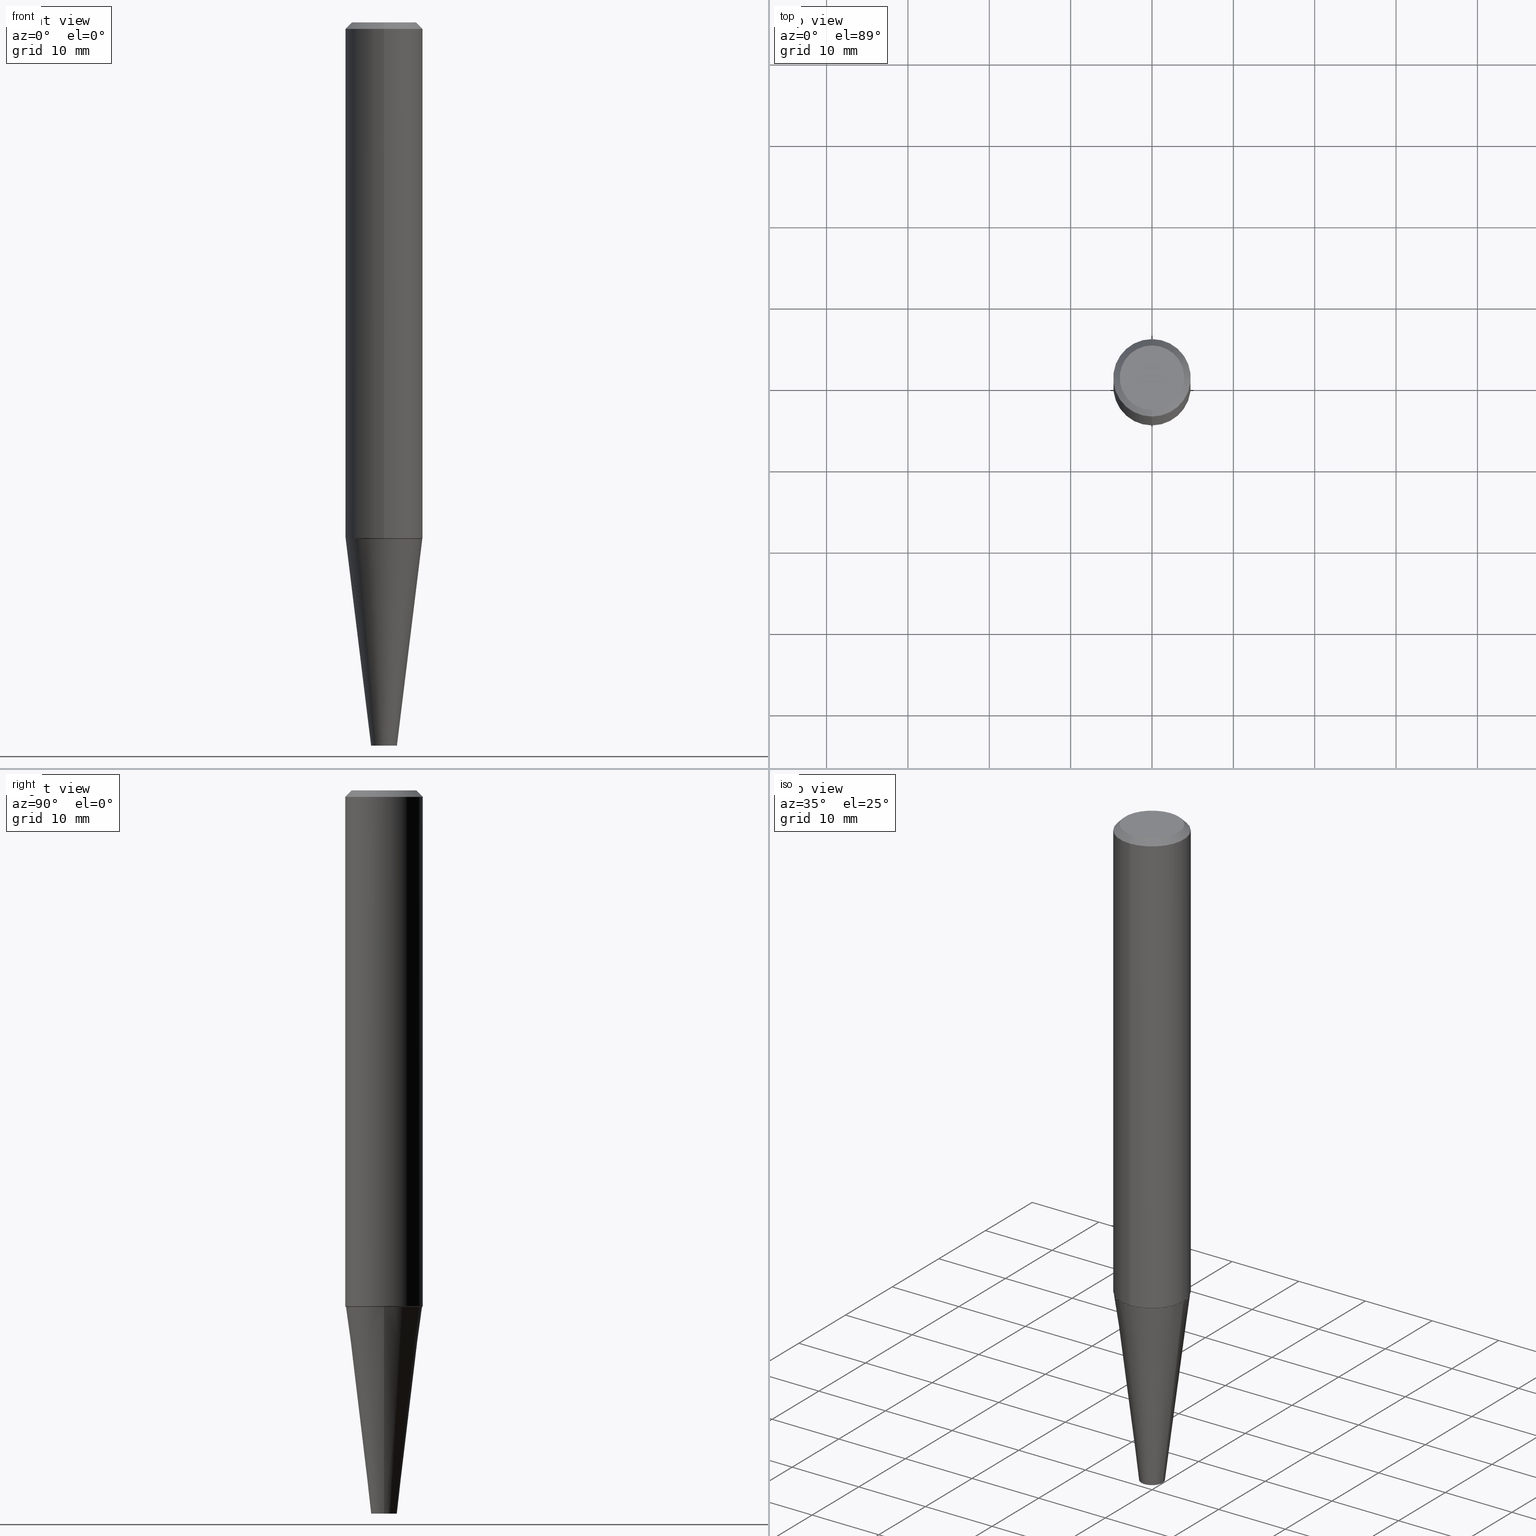
[diagram: canonical four-view strip — front | top / right | iso, engineering-drawing reading convention]
A machine part, canonical four-view strip (front | top / right | iso — engineering-drawing reading convention). The complete STEP part file that produces these views, byte-faithful:
ISO-10303-21;
HEADER;
FILE_DESCRIPTION (( 'STEP AP203' ),
    '1' );
FILE_NAME ('32382.STEP',
    '2024-03-04T15:09:43',
    ( '' ),
    ( '' ),
    'SwSTEP 2.0',
    'SolidWorks 2023',
    '' );
FILE_SCHEMA (( 'CONFIG_CONTROL_DESIGN' ));
ENDSEC;

DATA;
#1 = DIRECTION ( 'NONE',  ( 1.000000000000000000, -6.982962677686269866E-15, 0.000000000000000000 ) ) ;
#2 = PERSON ( 'UNSPECIFIED', 'UNSPECIFIED', 'UNSPECIFIED', ('UNSPECIFIED'), ('UNSPECIFIED'), ('UNSPECIFIED') ) ;
#3 = CALENDAR_DATE ( 2024, 4, 3 ) ;
#4 = DIRECTION ( 'NONE',  ( -2.600759612072551772E-29, 3.269096066208594988E-15, 1.000000000000000000 ) ) ;
#5 = ADVANCED_FACE ( 'NONE', ( #218 ), #158, .T. ) ;
#6 = CARTESIAN_POINT ( 'NONE',  ( -3.397982428467410497E-30, -4.866104238714464729E-16, 1.274557757746687313E-16 ) ) ;
#7 = PERSON_AND_ORGANIZATION ( #2, #90 ) ;
#8 = CIRCLE ( 'NONE', #309, 0.1857214302577610554 ) ;
#9 = AXIS2_PLACEMENT_3D ( 'NONE', #39, #200, #346 ) ;
#10 = UNCERTAINTY_MEASURE_WITH_UNIT (LENGTH_MEASURE( 1.000000000000000082E-05 ), #215, 'distance_accuracy_value', 'NONE');
#11 = DATE_AND_TIME ( #137, #287 ) ;
#12 = ORIENTED_EDGE ( 'NONE', *, *, #106, .T. ) ;
#13 = ORIENTED_EDGE ( 'NONE', *, *, #150, .T. ) ;
#14 = EDGE_CURVE ( 'NONE', #23, #395, #8, .T. ) ;
#15 =( GEOMETRIC_REPRESENTATION_CONTEXT ( 3 ) GLOBAL_UNCERTAINTY_ASSIGNED_CONTEXT ( ( #10 ) ) GLOBAL_UNIT_ASSIGNED_CONTEXT ( ( #215, #407, #379 ) ) REPRESENTATION_CONTEXT ( 'NONE', 'WORKASPACE' ) );
#16 = ORIENTED_EDGE ( 'NONE', *, *, #198, .T. ) ;
#17 = ADVANCED_FACE ( 'NONE', ( #52 ), #113, .T. ) ;
#18 = ORIENTED_EDGE ( 'NONE', *, *, #129, .F. ) ;
#19 = VERTEX_POINT ( 'NONE', #153 ) ;
#20 = CIRCLE ( 'NONE', #53, 0.1875000000000004718 ) ;
#21 = DIRECTION ( 'NONE',  ( -2.600759612072551772E-29, 3.269096066208594988E-15, 1.000000000000000000 ) ) ;
#22 = DIRECTION ( 'NONE',  ( -2.951127548644238740E-15, -0.4226182617407344688, 0.9063077870366335054 ) ) ;
#23 = VERTEX_POINT ( 'NONE', #121 ) ;
#24 = ADVANCED_FACE ( 'NONE', ( #312 ), #254, .F. ) ;
#25 = CC_DESIGN_PERSON_AND_ORGANIZATION_ASSIGNMENT ( #7, #327, ( #187 ) ) ;
#26 = CARTESIAN_POINT ( 'NONE',  ( -1.296885815936396651E-15, -0.1857214302577696874, -2.499063130645136077 ) ) ;
#27 = CARTESIAN_POINT ( 'NONE',  ( 6.159664215354721333E-29, -8.656287873470398389E-15, -2.499063130645136521 ) ) ;
#28 = VECTOR ( 'NONE', #62, 39.37007874015748143 ) ;
#29 = CARTESIAN_POINT ( 'NONE',  ( 0.1852845609028975771, -1.002253852064428481E-14, -2.500000000000000000 ) ) ;
#30 = CARTESIAN_POINT ( 'NONE',  ( 6.159664215354721333E-29, -8.656287873470398389E-15, -2.499063130645136521 ) ) ;
#31 = EDGE_CURVE ( 'NONE', #395, #23, #212, .T. ) ;
#32 = CARTESIAN_POINT ( 'NONE',  ( 1.200196710227326894E-15, 0.1562499999999999167, -3.833404845704254927E-16 ) ) ;
#33 = DIRECTION ( 'NONE',  ( -2.600759612072551772E-29, 3.269096066208594988E-15, 1.000000000000000000 ) ) ;
#34 = APPROVAL_ROLE ( '' ) ;
#35 = ADVANCED_BREP_SHAPE_REPRESENTATION ( '32382', ( #358, #359, #321 ), #15 ) ;
#36 = DIRECTION ( 'NONE',  ( 4.937700262164537787E-15, 0.7071067811865436870, -0.7071067811865513475 ) ) ;
#37 = VECTOR ( 'NONE', #22, 39.37007874015748143 ) ;
#38 = COORDINATED_UNIVERSAL_TIME_OFFSET ( 5, 0, .BEHIND. ) ;
#39 = CARTESIAN_POINT ( 'NONE',  ( -3.397982428467410497E-30, -4.866104238714464729E-16, 1.274557757746687313E-16 ) ) ;
#40 = DIRECTION ( 'NONE',  ( 1.000000000000000000, -6.982962677686262766E-15, 0.000000000000000000 ) ) ;
#41 = COORDINATED_UNIVERSAL_TIME_OFFSET ( 5, 0, .BEHIND. ) ;
#42 = APPROVAL_ROLE ( '' ) ;
#43 = CIRCLE ( 'NONE', #227, 0.1874999999999999445 ) ;
#44 = AXIS2_PLACEMENT_3D ( 'NONE', #105, #229, #40 ) ;
#45 = ORIENTED_EDGE ( 'NONE', *, *, #184, .F. ) ;
#46 = ORIENTED_EDGE ( 'NONE', *, *, #351, .F. ) ;
#47 = ORIENTED_EDGE ( 'NONE', *, *, #298, .T. ) ;
#48 = AXIS2_PLACEMENT_3D ( 'NONE', #197, #318, #266 ) ;
#49 = ORIENTED_EDGE ( 'NONE', *, *, #63, .T. ) ;
#50 = ADVANCED_FACE ( 'NONE', ( #194 ), #151, .T. ) ;
#51 = CARTESIAN_POINT ( 'NONE',  ( 6.162100787334639082E-29, -8.659350589392934928E-15, -2.500000000000000000 ) ) ;
#52 = FACE_OUTER_BOUND ( 'NONE', #80, .T. ) ;
#53 = AXIS2_PLACEMENT_3D ( 'NONE', #160, #410, #87 ) ;
#54 = CARTESIAN_POINT ( 'NONE',  ( -1.296885815936397045E-15, -0.1857214302577697984, -2.499063130645136077 ) ) ;
#55 = EDGE_CURVE ( 'NONE', #140, #23, #217, .T. ) ;
#56 = LINE ( 'NONE', #375, #226 ) ;
#57 = EDGE_CURVE ( 'NONE', #247, #274, #381, .T. ) ;
#58 = LINE ( 'NONE', #92, #159 ) ;
#59 = CC_DESIGN_PERSON_AND_ORGANIZATION_ASSIGNMENT ( #349, #384, ( #136 ) ) ;
#60 = LINE ( 'NONE', #316, #270 ) ;
#61 = FACE_OUTER_BOUND ( 'NONE', #82, .T. ) ;
#62 = DIRECTION ( 'NONE',  ( 5.024295867788152320E-15, 0.7071067811865626718, 0.7071067811865323627 ) ) ;
#63 = EDGE_CURVE ( 'NONE', #371, #19, #60, .T. ) ;
#64 = VECTOR ( 'NONE', #296, 39.37007874015748854 ) ;
#65 = PLANE ( 'NONE',  #149 ) ;
#66 = DIRECTION ( 'NONE',  ( 1.000000000000000000, -6.982962677686262766E-15, 0.000000000000000000 ) ) ;
#67 = LINE ( 'NONE', #26, #37 ) ;
#68 = FACE_OUTER_BOUND ( 'NONE', #399, .T. ) ;
#69 = PERSON_AND_ORGANIZATION_ROLE ( 'design_owner' ) ;
#70 = DIRECTION ( 'NONE',  ( -1.000000000000000000, 6.982962677686265922E-15, -4.876176775795935793E-29 ) ) ;
#71 = CIRCLE ( 'NONE', #142, 0.1847845609028974934 ) ;
#72 = LOCAL_TIME ( 10, 9, 43.00000000000000000, #73 ) ;
#73 = COORDINATED_UNIVERSAL_TIME_OFFSET ( 5, 0, .BEHIND. ) ;
#74 = CARTESIAN_POINT ( 'NONE',  ( 6.162100787334639082E-29, -8.659350589392934928E-15, -2.500000000000000000 ) ) ;
#75 = PRODUCT_DEFINITION_SHAPE ( 'NONE', 'NONE',  #370 ) ;
#76 = PLANE ( 'NONE',  #372 ) ;
#77 = PERSON_AND_ORGANIZATION ( #2, #90 ) ;
#78 = EDGE_LOOP ( 'NONE', ( #364, #368, #307, #110 ) ) ;
#79 = ORIENTED_EDGE ( 'NONE', *, *, #351, .T. ) ;
#80 = EDGE_LOOP ( 'NONE', ( #111, #162, #209, #330 ) ) ;
#81 = LOCAL_TIME ( 10, 9, 43.00000000000000000, #41 ) ;
#82 = EDGE_LOOP ( 'NONE', ( #115, #45 ) ) ;
#83 = ORIENTED_EDGE ( 'NONE', *, *, #256, .F. ) ;
#84 = EDGE_CURVE ( 'NONE', #275, #395, #56, .T. ) ;
#85 = CARTESIAN_POINT ( 'NONE',  ( -1.309305502066179544E-15, -0.1875000000000006661, 6.320793669469502514E-16 ) ) ;
#86 = ORIENTED_EDGE ( 'NONE', *, *, #220, .T. ) ;
#87 = DIRECTION ( 'NONE',  ( -6.982962677686265922E-15, -1.000000000000000000, 3.278217592397107974E-15 ) ) ;
#88 = CONICAL_SURFACE ( 'NONE', #181, 0.1847845609028974934, 0.7853981633974664867 ) ;
#89 = DIRECTION ( 'NONE',  ( -6.982962677686265922E-15, -1.000000000000000000, 2.941876971195792184E-15 ) ) ;
#90 = ORGANIZATION ( 'UNSPECIFIED', 'UNSPECIFIED', '' ) ;
#91 = ORIENTED_EDGE ( 'NONE', *, *, #286, .T. ) ;
#92 = CARTESIAN_POINT ( 'NONE',  ( 0.06250000000000000000, -1.265661985330639943E-14, -3.500000000000000000 ) ) ;
#93 = ORIENTED_EDGE ( 'NONE', *, *, #129, .T. ) ;
#94 = DIRECTION ( 'NONE',  ( -6.982962677686266711E-15, -1.000000000000000000, 2.913971193241881555E-15 ) ) ;
#95 = AXIS2_PLACEMENT_3D ( 'NONE', #414, #392, #66 ) ;
#96 = DIRECTION ( 'NONE',  ( -2.600759612072551772E-29, 3.269096066208594988E-15, 1.000000000000000000 ) ) ;
#97 = COORDINATED_UNIVERSAL_TIME_OFFSET ( 5, 0, .BEHIND. ) ;
#98 = EDGE_CURVE ( 'NONE', #246, #112, #43, .T. ) ;
#99 = CARTESIAN_POINT ( 'NONE',  ( 1.319630131446343223E-15, 0.1857214302577524234, -2.499063130645136965 ) ) ;
#100 = MECHANICAL_CONTEXT ( 'NONE', #400, 'mechanical' ) ;
#101 = ADVANCED_FACE ( 'NONE', ( #189 ), #249, .T. ) ;
#102 = FACE_OUTER_BOUND ( 'NONE', #397, .T. ) ;
#103 = CLOSED_SHELL ( 'NONE', ( #138, #268, #5, #145 ) ) ;
#104 = CALENDAR_DATE ( 2024, 4, 3 ) ;
#105 = CARTESIAN_POINT ( 'NONE',  ( 8.559140821647976968E-29, -1.222018468595100934E-14, -3.500000000000000000 ) ) ;
#106 = EDGE_CURVE ( 'NONE', #246, #19, #214, .T. ) ;
#107 = APPROVAL_ROLE ( '' ) ;
#108 = ORIENTED_EDGE ( 'NONE', *, *, #14, .F. ) ;
#109 = APPROVAL_PERSON_ORGANIZATION ( #242, #118, #107 ) ;
#110 = ORIENTED_EDGE ( 'NONE', *, *, #84, .F. ) ;
#111 = ORIENTED_EDGE ( 'NONE', *, *, #170, .F. ) ;
#112 = VERTEX_POINT ( 'NONE', #126 ) ;
#113 = CONICAL_SURFACE ( 'NONE', #127, 0.1857214302577610554, 0.4363323129986242943 ) ;
#114 = AXIS2_PLACEMENT_3D ( 'NONE', #292, #166, #1 ) ;
#115 = ORIENTED_EDGE ( 'NONE', *, *, #156, .F. ) ;
#116 = ORIENTED_EDGE ( 'NONE', *, *, #203, .T. ) ;
#117 =( LENGTH_UNIT ( ) NAMED_UNIT ( * ) SI_UNIT ( $, .METRE. ) );
#118 = APPROVAL ( #416, 'UNSPECIFIED' ) ;
#119 = ADVANCED_FACE ( 'NONE', ( #263 ), #383, .F. ) ;
#120 = APPROVAL_PERSON_ORGANIZATION ( #233, #302, #34 ) ;
#121 = CARTESIAN_POINT ( 'NONE',  ( 1.319630131446342829E-15, 0.1857214302577523124, -2.499063130645136965 ) ) ;
#122 = ORIENTED_EDGE ( 'NONE', *, *, #409, .T. ) ;
#123 = CARTESIAN_POINT ( 'NONE',  ( 6.159664215354721333E-29, -8.656287873470398389E-15, -2.499063130645136521 ) ) ;
#124 = DIRECTION ( 'NONE',  ( -2.600759612072551772E-29, 3.269096066208594988E-15, 1.000000000000000000 ) ) ;
#125 = CARTESIAN_POINT ( 'NONE',  ( 1.309305502066175600E-15, 0.1874999999999998890, -0.03125000000000069389 ) ) ;
#126 = CARTESIAN_POINT ( 'NONE',  ( 1.332267629550217234E-15, 0.1874999999999913125, -2.495248975524297474 ) ) ;
#127 = AXIS2_PLACEMENT_3D ( 'NONE', #30, #188, #289 ) ;
#128 = AXIS2_PLACEMENT_3D ( 'NONE', #6, #96, #135 ) ;
#129 = EDGE_CURVE ( 'NONE', #371, #335, #175, .T. ) ;
#130 = APPROVAL_DATE_TIME ( #173, #118 ) ;
#131 = CARTESIAN_POINT ( 'NONE',  ( 6.162100787334639082E-29, -8.659350589392934928E-15, -2.500000000000000000 ) ) ;
#132 = APPROVAL_DATE_TIME ( #177, #222 ) ;
#133 = EDGE_CURVE ( 'NONE', #275, #140, #322, .T. ) ;
#134 = FACE_OUTER_BOUND ( 'NONE', #185, .T. ) ;
#135 = DIRECTION ( 'NONE',  ( -6.982962677686265922E-15, -1.000000000000000000, 3.269096066208595382E-15 ) ) ;
#136 = PRODUCT_DEFINITION_FORMATION_WITH_SPECIFIED_SOURCE ( 'ANY', '', #365, .NOT_KNOWN. ) ;
#137 = CALENDAR_DATE ( 2024, 4, 3 ) ;
#138 = ADVANCED_FACE ( 'NONE', ( #204 ), #193, .T. ) ;
#139 = DATE_TIME_ROLE ( 'classification_date' ) ;
#140 = VERTEX_POINT ( 'NONE', #348 ) ;
#141 = EDGE_LOOP ( 'NONE', ( #147, #378, #180, #79 ) ) ;
#142 = AXIS2_PLACEMENT_3D ( 'NONE', #131, #265, #386 ) ;
#143 = ORIENTED_EDGE ( 'NONE', *, *, #133, .F. ) ;
#144 = ADVANCED_FACE ( 'NONE', ( #68 ), #239, .T. ) ;
#145 = ADVANCED_FACE ( 'NONE', ( #134 ), #76, .F. ) ;
#146 = EDGE_LOOP ( 'NONE', ( #362, #91, #213, #250 ) ) ;
#147 = ORIENTED_EDGE ( 'NONE', *, *, #63, .F. ) ;
#148 = AXIS2_PLACEMENT_3D ( 'NONE', #224, #343, #377 ) ;
#149 = AXIS2_PLACEMENT_3D ( 'NONE', #192, #347, #259 ) ;
#150 = EDGE_CURVE ( 'NONE', #335, #371, #360, .T. ) ;
#151 = CYLINDRICAL_SURFACE ( 'NONE', #148, 0.1875000000000001943 ) ;
#152 = FACE_OUTER_BOUND ( 'NONE', #179, .T. ) ;
#153 = CARTESIAN_POINT ( 'NONE',  ( -1.286343374582167887E-15, -0.1875000000000010270, -0.03124999999999946571 ) ) ;
#154 = DIRECTION ( 'NONE',  ( 6.982962677686265922E-15, 1.000000000000000000, -3.278217592397107974E-15 ) ) ;
#155 = ORIENTED_EDGE ( 'NONE', *, *, #98, .F. ) ;
#156 = EDGE_CURVE ( 'NONE', #398, #260, #314, .T. ) ;
#157 = CARTESIAN_POINT ( 'NONE',  ( 0.06250000000000000000, -1.265661985330639943E-14, -3.500000000000000000 ) ) ;
#158 = CONICAL_SURFACE ( 'NONE', #401, 0.06250000000000000000, 0.1221730476395961884 ) ;
#159 = VECTOR ( 'NONE', #285, 39.37007874015748854 ) ;
#160 = CARTESIAN_POINT ( 'NONE',  ( -2.585245049694732813E-30, -5.887696759404657318E-16, -0.03125000000000008327 ) ) ;
#161 = CARTESIAN_POINT ( 'NONE',  ( 6.159664215354721333E-29, -8.656287873470398389E-15, -2.499063130645136521 ) ) ;
#162 = ORIENTED_EDGE ( 'NONE', *, *, #14, .T. ) ;
#163 = CARTESIAN_POINT ( 'NONE',  ( -1.290343692197516517E-15, -0.1847845609029061809, -2.499999999999999556 ) ) ;
#164 = DIRECTION ( 'NONE',  ( -6.982962677686265922E-15, -1.000000000000000000, 3.269096066208594988E-15 ) ) ;
#165 = CALENDAR_DATE ( 2024, 4, 3 ) ;
#166 = DIRECTION ( 'NONE',  ( -2.445468806185136597E-29, 3.491481338843145583E-15, 1.000000000000000000 ) ) ;
#167 = APPROVAL_PERSON_ORGANIZATION ( #295, #222, #42 ) ;
#168 = COORDINATED_UNIVERSAL_TIME_OFFSET ( 5, 0, .BEHIND. ) ;
#169 = LINE ( 'NONE', #388, #300 ) ;
#170 = EDGE_CURVE ( 'NONE', #23, #112, #319, .T. ) ;
#171 = DIMENSIONAL_EXPONENTS ( 1.000000000000000000, 0.000000000000000000, 0.000000000000000000, 0.000000000000000000, 0.000000000000000000, 0.000000000000000000, 0.000000000000000000 ) ;
#172 = DIRECTION ( 'NONE',  ( 2.438088387897960049E-29, -3.491481338843145188E-15, -1.000000000000000000 ) ) ;
#173 = DATE_AND_TIME ( #104, #176 ) ;
#174 = AXIS2_PLACEMENT_3D ( 'NONE', #27, #288, #89 ) ;
#175 = CIRCLE ( 'NONE', #128, 0.1562500000000003886 ) ;
#176 = LOCAL_TIME ( 10, 9, 43.00000000000000000, #38 ) ;
#177 = DATE_AND_TIME ( #3, #72 ) ;
#178 = DIRECTION ( 'NONE',  ( -2.600759612072551772E-29, 3.269096066208594988E-15, 1.000000000000000000 ) ) ;
#179 = EDGE_LOOP ( 'NONE', ( #277, #328, #155, #83 ) ) ;
#180 = ORIENTED_EDGE ( 'NONE', *, *, #196, .T. ) ;
#181 = AXIS2_PLACEMENT_3D ( 'NONE', #235, #4, #325 ) ;
#182 = DIRECTION ( 'NONE',  ( -6.982962677686265922E-15, -1.000000000000000000, 2.941876971195792184E-15 ) ) ;
#183 = ORIENTED_EDGE ( 'NONE', *, *, #286, .F. ) ;
#184 = EDGE_CURVE ( 'NONE', #260, #398, #396, .T. ) ;
#185 = EDGE_LOOP ( 'NONE', ( #16, #245 ) ) ;
#186 = AXIS2_PLACEMENT_3D ( 'NONE', #411, #311, #225 ) ;
#187 = SECURITY_CLASSIFICATION ( '', '', #206 ) ;
#188 = DIRECTION ( 'NONE',  ( -2.600759612072551772E-29, 3.269096066208594988E-15, 1.000000000000000000 ) ) ;
#189 = FACE_OUTER_BOUND ( 'NONE', #78, .T. ) ;
#190 = FACE_OUTER_BOUND ( 'NONE', #221, .T. ) ;
#191 = ADVANCED_FACE ( 'NONE', ( #102 ), #88, .T. ) ;
#192 = CARTESIAN_POINT ( 'NONE',  ( 4.364351673554772115E-16, 0.06249999999998778061, -3.500000000000000000 ) ) ;
#193 = CONICAL_SURFACE ( 'NONE', #44, 0.06250000000000000000, 0.1221730476395961884 ) ;
#194 = FACE_OUTER_BOUND ( 'NONE', #301, .T. ) ;
#195 = CARTESIAN_POINT ( 'NONE',  ( -2.585245049694732813E-30, -5.887696759404657318E-16, -0.03125000000000008327 ) ) ;
#196 = EDGE_CURVE ( 'NONE', #335, #361, #169, .T. ) ;
#197 = CARTESIAN_POINT ( 'NONE',  ( 8.559140821647976968E-29, -1.222018468595100934E-14, -3.500000000000000000 ) ) ;
#198 = EDGE_CURVE ( 'NONE', #274, #247, #305, .T. ) ;
#199 = DIRECTION ( 'NONE',  ( 1.000000000000000000, -6.982962677686262766E-15, 0.000000000000000000 ) ) ;
#200 = DIRECTION ( 'NONE',  ( -2.600759612072551772E-29, 3.269096066208594988E-15, 1.000000000000000000 ) ) ;
#201 = PERSON_AND_ORGANIZATION_ROLE ( 'design_supplier' ) ;
#202 = DIRECTION ( 'NONE',  ( -6.982962677686265922E-15, -1.000000000000000000, 3.269096066208594988E-15 ) ) ;
#203 = EDGE_CURVE ( 'NONE', #140, #275, #71, .T. ) ;
#204 = FACE_OUTER_BOUND ( 'NONE', #146, .T. ) ;
#205 = PERSON_AND_ORGANIZATION ( #2, #90 ) ;
#206 = SECURITY_CLASSIFICATION_LEVEL ( 'unclassified' ) ;
#207 = AXIS2_PLACEMENT_3D ( 'NONE', #369, #258, #338 ) ;
#208 = AXIS2_PLACEMENT_3D ( 'NONE', #195, #291, #154 ) ;
#209 = ORIENTED_EDGE ( 'NONE', *, *, #256, .T. ) ;
#210 = ORIENTED_EDGE ( 'NONE', *, *, #409, .F. ) ;
#211 = ORIENTED_EDGE ( 'NONE', *, *, #282, .T. ) ;
#212 = CIRCLE ( 'NONE', #174, 0.1857214302577610554 ) ;
#213 = ORIENTED_EDGE ( 'NONE', *, *, #198, .F. ) ;
#214 = LINE ( 'NONE', #85, #237 ) ;
#215 =( CONVERSION_BASED_UNIT ( 'INCH', #253 ) LENGTH_UNIT ( ) NAMED_UNIT ( #171 ) );
#216 = CIRCLE ( 'NONE', #353, 0.1874999999999999445 ) ;
#217 = LINE ( 'NONE', #408, #28 ) ;
#218 = FACE_OUTER_BOUND ( 'NONE', #278, .T. ) ;
#219 = DIRECTION ( 'NONE',  ( -2.600759612072551772E-29, 3.269096066208594988E-15, 1.000000000000000000 ) ) ;
#220 = EDGE_CURVE ( 'NONE', #112, #246, #216, .T. ) ;
#221 = EDGE_LOOP ( 'NONE', ( #18, #49, #211, #255 ) ) ;
#222 = APPROVAL ( #272, 'UNSPECIFIED' ) ;
#223 = LINE ( 'NONE', #283, #310 ) ;
#224 = CARTESIAN_POINT ( 'NONE',  ( -3.397982428467408395E-30, -4.866104238714468673E-16, 1.912385453283800096E-17 ) ) ;
#225 = DIRECTION ( 'NONE',  ( -6.982962677686265922E-15, -1.000000000000000000, 3.278217592397107974E-15 ) ) ;
#226 = VECTOR ( 'NONE', #412, 39.37007874015748143 ) ;
#227 = AXIS2_PLACEMENT_3D ( 'NONE', #334, #124, #94 ) ;
#228 = CARTESIAN_POINT ( 'NONE',  ( 1.091087918388478385E-15, 0.1562499999999999167, -4.375064451913409565E-16 ) ) ;
#229 = DIRECTION ( 'NONE',  ( -2.445468806185136597E-29, 3.491481338843145583E-15, 1.000000000000000000 ) ) ;
#230 = CC_DESIGN_DATE_AND_TIME_ASSIGNMENT ( #326, #320, ( #370 ) ) ;
#231 = DATE_AND_TIME ( #352, #391 ) ;
#232 = CARTESIAN_POINT ( 'NONE',  ( 6.149744514762260827E-29, -8.643819033968951977E-15, -2.495248975524296586 ) ) ;
#233 = PERSON_AND_ORGANIZATION ( #2, #90 ) ;
#234 = DIRECTION ( 'NONE',  ( -2.445468806185136597E-29, 3.491481338843145583E-15, 1.000000000000000000 ) ) ;
#235 = CARTESIAN_POINT ( 'NONE',  ( 6.162100787334639082E-29, -8.659350589392934928E-15, -2.500000000000000000 ) ) ;
#236 = CLOSED_SHELL ( 'NONE', ( #355, #144, #332, #101, #191, #119, #24, #252, #50, #17 ) ) ;
#237 = VECTOR ( 'NONE', #405, 39.37007874015748143 ) ;
#238 = DIRECTION ( 'NONE',  ( 0.000000000000000000, 0.000000000000000000, 1.000000000000000000 ) ) ;
#239 = CYLINDRICAL_SURFACE ( 'NONE', #262, 0.1875000000000001943 ) ;
#240 = PRODUCT_RELATED_PRODUCT_CATEGORY ( 'detail', '', ( #365 ) ) ;
#241 = DIRECTION ( 'NONE',  ( 1.000000000000000000, 0.000000000000000000, 0.000000000000000000 ) ) ;
#242 = PERSON_AND_ORGANIZATION ( #2, #90 ) ;
#243 = ORIENTED_EDGE ( 'NONE', *, *, #98, .T. ) ;
#244 = CONICAL_SURFACE ( 'NONE', #208, 0.1875000000000004718, 0.7853981633974461696 ) ;
#245 = ORIENTED_EDGE ( 'NONE', *, *, #57, .T. ) ;
#246 = VERTEX_POINT ( 'NONE', #337 ) ;
#247 = VERTEX_POINT ( 'NONE', #340 ) ;
#248 = AXIS2_PLACEMENT_3D ( 'NONE', #228, #341, #281 ) ;
#249 = CONICAL_SURFACE ( 'NONE', #344, 0.1847845609028974934, 0.7853981633974664867 ) ;
#250 = ORIENTED_EDGE ( 'NONE', *, *, #298, .F. ) ;
#251 = ORIENTED_EDGE ( 'NONE', *, *, #84, .T. ) ;
#252 = ADVANCED_FACE ( 'NONE', ( #374 ), #366, .T. ) ;
#253 = LENGTH_MEASURE_WITH_UNIT ( LENGTH_MEASURE( 0.02539999999999999897 ), #117 );
#254 = PLANE ( 'NONE',  #248 ) ;
#255 = ORIENTED_EDGE ( 'NONE', *, *, #196, .F. ) ;
#256 = EDGE_CURVE ( 'NONE', #395, #246, #67, .T. ) ;
#257 = CC_DESIGN_APPROVAL ( #222, ( #187 ) ) ;
#258 = DIRECTION ( 'NONE',  ( -2.445468806185136597E-29, 3.491481338843145583E-15, 1.000000000000000000 ) ) ;
#259 = DIRECTION ( 'NONE',  ( -1.000000000000000000, 6.982962677686265922E-15, -4.876176775795935793E-29 ) ) ;
#260 = VERTEX_POINT ( 'NONE', #280 ) ;
#261 = DIRECTION ( 'NONE',  ( -0.1218693434051406344, 4.331390133080014653E-15, 0.9925461516413227603 ) ) ;
#262 = AXIS2_PLACEMENT_3D ( 'NONE', #357, #269, #202 ) ;
#263 = FACE_OUTER_BOUND ( 'NONE', #290, .T. ) ;
#264 = PERSON_AND_ORGANIZATION ( #2, #90 ) ;
#265 = DIRECTION ( 'NONE',  ( -2.600759612072551772E-29, 3.269096066208594988E-15, 1.000000000000000000 ) ) ;
#266 = DIRECTION ( 'NONE',  ( 1.000000000000000000, -6.982962677686262766E-15, 0.000000000000000000 ) ) ;
#267 = CARTESIAN_POINT ( 'NONE',  ( 0.000000000000000000, 0.000000000000000000, 0.000000000000000000 ) ) ;
#268 = ADVANCED_FACE ( 'NONE', ( #61 ), #65, .T. ) ;
#269 = DIRECTION ( 'NONE',  ( -2.600759612072551772E-29, 3.269096066208594988E-15, 1.000000000000000000 ) ) ;
#270 = VECTOR ( 'NONE', #380, 39.37007874015748143 ) ;
#271 = CC_DESIGN_APPROVAL ( #302, ( #370 ) ) ;
#272 = APPROVAL_STATUS ( 'not_yet_approved' ) ;
#273 = SHAPE_DEFINITION_REPRESENTATION ( #75, #35 ) ;
#274 = VERTEX_POINT ( 'NONE', #29 ) ;
#275 = VERTEX_POINT ( 'NONE', #163 ) ;
#276 = EDGE_LOOP ( 'NONE', ( #13, #93 ) ) ;
#277 = ORIENTED_EDGE ( 'NONE', *, *, #31, .T. ) ;
#278 = EDGE_LOOP ( 'NONE', ( #183, #303, #47, #403 ) ) ;
#279 = DIRECTION ( 'NONE',  ( -6.982962677686266711E-15, -1.000000000000000000, 2.956792472613362092E-15 ) ) ;
#280 = CARTESIAN_POINT ( 'NONE',  ( -0.06250000000000000000, -9.594136417614135936E-15, -3.500000000000000000 ) ) ;
#281 = DIRECTION ( 'NONE',  ( 6.982962677686265922E-15, 1.000000000000000000, -3.269096066208594988E-15 ) ) ;
#282 = EDGE_CURVE ( 'NONE', #19, #361, #415, .T. ) ;
#283 = CARTESIAN_POINT ( 'NONE',  ( 1.332267629550185482E-15, 0.1874999999999996947, -5.938316578812741509E-16 ) ) ;
#284 = AXIS2_PLACEMENT_3D ( 'NONE', #315, #376, #342 ) ;
#285 = DIRECTION ( 'NONE',  ( 0.1218693434051406344, 2.614447289844029388E-15, 0.9925461516413227603 ) ) ;
#286 = EDGE_CURVE ( 'NONE', #260, #247, #317, .T. ) ;
#287 = LOCAL_TIME ( 10, 9, 43.00000000000000000, #168 ) ;
#288 = DIRECTION ( 'NONE',  ( -2.600759612072551772E-29, 3.269096066208594988E-15, 1.000000000000000000 ) ) ;
#289 = DIRECTION ( 'NONE',  ( -6.982962677686265922E-15, -1.000000000000000000, 2.941876971195792184E-15 ) ) ;
#290 = EDGE_LOOP ( 'NONE', ( #143, #329 ) ) ;
#291 = DIRECTION ( 'NONE',  ( 2.600759612072551772E-29, -3.269096066208594988E-15, -1.000000000000000000 ) ) ;
#292 = CARTESIAN_POINT ( 'NONE',  ( 6.113672015462842613E-29, -8.728703347107864943E-15, -2.500000000000000000 ) ) ;
#293 = CONICAL_SURFACE ( 'NONE', #336, 0.1857214302577610554, 0.4363323129986242943 ) ;
#294 = CARTESIAN_POINT ( 'NONE',  ( 5.971225253674979444E-29, -8.932695217554266386E-15, -2.500000000000000000 ) ) ;
#295 = PERSON_AND_ORGANIZATION ( #2, #90 ) ;
#296 = DIRECTION ( 'NONE',  ( 3.002883358794391947E-15, 0.4226182617407402420, 0.9063077870366308408 ) ) ;
#297 = APPROVAL_STATUS ( 'not_yet_approved' ) ;
#298 = EDGE_CURVE ( 'NONE', #398, #274, #58, .T. ) ;
#299 = CARTESIAN_POINT ( 'NONE',  ( 1.293835173536482981E-15, 0.1852845609028888341, -2.500000000000000444 ) ) ;
#300 = VECTOR ( 'NONE', #36, 39.37007874015748143 ) ;
#301 = EDGE_LOOP ( 'NONE', ( #210, #86, #12, #46 ) ) ;
#302 = APPROVAL ( #297, 'UNSPECIFIED' ) ;
#303 = ORIENTED_EDGE ( 'NONE', *, *, #184, .T. ) ;
#304 = APPLICATION_CONTEXT ( 'configuration controlled 3d designs of mechanical parts and assemblies' ) ;
#305 = CIRCLE ( 'NONE', #114, 0.1852845609028975771 ) ;
#306 = ORIENTED_EDGE ( 'NONE', *, *, #55, .F. ) ;
#307 = ORIENTED_EDGE ( 'NONE', *, *, #31, .F. ) ;
#308 = DIRECTION ( 'NONE',  ( -2.600759612072551772E-29, 3.269096066208594988E-15, 1.000000000000000000 ) ) ;
#309 = AXIS2_PLACEMENT_3D ( 'NONE', #161, #178, #182 ) ;
#310 = VECTOR ( 'NONE', #219, 39.37007874015748143 ) ;
#311 = DIRECTION ( 'NONE',  ( -2.600759612072551772E-29, 3.269096066208594988E-15, 1.000000000000000000 ) ) ;
#312 = FACE_OUTER_BOUND ( 'NONE', #276, .T. ) ;
#313 = CARTESIAN_POINT ( 'NONE',  ( -1.179148093366987707E-15, -0.1562500000000008604, 6.382520361197630047E-16 ) ) ;
#314 = CIRCLE ( 'NONE', #95, 0.06250000000000000000 ) ;
#315 = CARTESIAN_POINT ( 'NONE',  ( -2.585245049694732813E-30, -5.887696759404657318E-16, -0.03125000000000008327 ) ) ;
#316 = CARTESIAN_POINT ( 'NONE',  ( -1.286343374582167887E-15, -0.1875000000000010270, -0.03124999999999946571 ) ) ;
#317 = LINE ( 'NONE', #345, #382 ) ;
#318 = DIRECTION ( 'NONE',  ( -2.445468806185136597E-29, 3.491481338843145583E-15, 1.000000000000000000 ) ) ;
#319 = LINE ( 'NONE', #99, #64 ) ;
#320 = DATE_TIME_ROLE ( 'creation_date' ) ;
#321 = AXIS2_PLACEMENT_3D ( 'NONE', #267, #238, #241 ) ;
#322 = CIRCLE ( 'NONE', #402, 0.1847845609028974934 ) ;
#323 = DIRECTION ( 'NONE',  ( -6.982962677686266711E-15, -1.000000000000000000, 2.956792472613362092E-15 ) ) ;
#324 = CC_DESIGN_PERSON_AND_ORGANIZATION_ASSIGNMENT ( #264, #201, ( #136 ) ) ;
#325 = DIRECTION ( 'NONE',  ( -6.982962677686266711E-15, -1.000000000000000000, 2.956792472613362092E-15 ) ) ;
#326 = DATE_AND_TIME ( #165, #81 ) ;
#327 = PERSON_AND_ORGANIZATION_ROLE ( 'classification_officer' ) ;
#328 = ORIENTED_EDGE ( 'NONE', *, *, #170, .T. ) ;
#329 = ORIENTED_EDGE ( 'NONE', *, *, #203, .F. ) ;
#330 = ORIENTED_EDGE ( 'NONE', *, *, #220, .F. ) ;
#331 = AXIS2_PLACEMENT_3D ( 'NONE', #294, #354, #164 ) ;
#332 = ADVANCED_FACE ( 'NONE', ( #190 ), #244, .T. ) ;
#333 = ORIENTED_EDGE ( 'NONE', *, *, #282, .F. ) ;
#334 = CARTESIAN_POINT ( 'NONE',  ( 6.149744514762260827E-29, -8.643819033968951977E-15, -2.495248975524296586 ) ) ;
#335 = VERTEX_POINT ( 'NONE', #32 ) ;
#336 = AXIS2_PLACEMENT_3D ( 'NONE', #123, #21, #413 ) ;
#337 = CARTESIAN_POINT ( 'NONE',  ( -1.309305502066113083E-15, -0.1875000000000085765, -2.495248975524296142 ) ) ;
#338 = DIRECTION ( 'NONE',  ( 1.000000000000000000, -6.982962677686269866E-15, 0.000000000000000000 ) ) ;
#339 = CARTESIAN_POINT ( 'NONE',  ( 8.559140821647976968E-29, -1.222018468595100934E-14, -3.500000000000000000 ) ) ;
#340 = CARTESIAN_POINT ( 'NONE',  ( -0.1852845609028975771, -7.412177359127328301E-15, -2.500000000000000000 ) ) ;
#341 = DIRECTION ( 'NONE',  ( 2.600759612072551772E-29, -3.269096066208594988E-15, -1.000000000000000000 ) ) ;
#342 = DIRECTION ( 'NONE',  ( 6.982962677686265922E-15, 1.000000000000000000, -3.278217592397107974E-15 ) ) ;
#343 = DIRECTION ( 'NONE',  ( -2.600759612072551772E-29, 3.269096066208594988E-15, 1.000000000000000000 ) ) ;
#344 = AXIS2_PLACEMENT_3D ( 'NONE', #51, #308, #279 ) ;
#345 = CARTESIAN_POINT ( 'NONE',  ( -0.06250000000000000000, -1.177609547610094673E-14, -3.500000000000000000 ) ) ;
#346 = DIRECTION ( 'NONE',  ( -6.982962677686265922E-15, -1.000000000000000000, 3.269096066208595382E-15 ) ) ;
#347 = DIRECTION ( 'NONE',  ( 2.438088387897960049E-29, -3.491481338843145188E-15, -1.000000000000000000 ) ) ;
#348 = CARTESIAN_POINT ( 'NONE',  ( 1.316301702874070347E-15, 0.1847845609028888336, -2.500000000000000444 ) ) ;
#349 = PERSON_AND_ORGANIZATION ( #2, #90 ) ;
#350 = DIRECTION ( 'NONE',  ( -2.600759612072551772E-29, 3.269096066208594988E-15, 1.000000000000000000 ) ) ;
#351 = EDGE_CURVE ( 'NONE', #361, #19, #20, .T. ) ;
#352 = CALENDAR_DATE ( 2024, 4, 3 ) ;
#353 = AXIS2_PLACEMENT_3D ( 'NONE', #232, #350, #406 ) ;
#354 = DIRECTION ( 'NONE',  ( -2.600759612072551772E-29, 3.269096066208594988E-15, 1.000000000000000000 ) ) ;
#355 = ADVANCED_FACE ( 'NONE', ( #152 ), #293, .T. ) ;
#356 = APPLICATION_PROTOCOL_DEFINITION ( 'international standard', 'config_control_design', 1994, #400 ) ;
#357 = CARTESIAN_POINT ( 'NONE',  ( -3.397982428467408395E-30, -4.866104238714468673E-16, 1.912385453283800096E-17 ) ) ;
#358 = MANIFOLD_SOLID_BREP ( 'Body-Move/Copy2[1]', #103 ) ;
#359 = MANIFOLD_SOLID_BREP ( 'Body-Move/Copy2[2]', #236 ) ;
#360 = CIRCLE ( 'NONE', #9, 0.1562500000000003886 ) ;
#361 = VERTEX_POINT ( 'NONE', #125 ) ;
#362 = ORIENTED_EDGE ( 'NONE', *, *, #156, .T. ) ;
#363 = CC_DESIGN_DATE_AND_TIME_ASSIGNMENT ( #11, #139, ( #187 ) ) ;
#364 = ORIENTED_EDGE ( 'NONE', *, *, #133, .T. ) ;
#365 = PRODUCT ( '32382', '32382', '', ( #100 ) ) ;
#366 = CONICAL_SURFACE ( 'NONE', #284, 0.1875000000000004718, 0.7853981633974461696 ) ;
#367 = ORIENTED_EDGE ( 'NONE', *, *, #106, .F. ) ;
#368 = ORIENTED_EDGE ( 'NONE', *, *, #55, .T. ) ;
#369 = CARTESIAN_POINT ( 'NONE',  ( 6.113672015462842613E-29, -8.728703347107864943E-15, -2.500000000000000000 ) ) ;
#370 = PRODUCT_DEFINITION ( 'UNKNOWN', '', #136, #385 ) ;
#371 = VERTEX_POINT ( 'NONE', #313 ) ;
#372 = AXIS2_PLACEMENT_3D ( 'NONE', #299, #172, #70 ) ;
#373 = CC_DESIGN_APPROVAL ( #118, ( #136 ) ) ;
#374 = FACE_OUTER_BOUND ( 'NONE', #141, .T. ) ;
#375 = CARTESIAN_POINT ( 'NONE',  ( -1.290343692197516517E-15, -0.1847845609029061809, -2.499999999999999556 ) ) ;
#376 = DIRECTION ( 'NONE',  ( 2.600759612072551772E-29, -3.269096066208594988E-15, -1.000000000000000000 ) ) ;
#377 = DIRECTION ( 'NONE',  ( -6.982962677686265922E-15, -1.000000000000000000, 3.269096066208594988E-15 ) ) ;
#378 = ORIENTED_EDGE ( 'NONE', *, *, #150, .F. ) ;
#379 =( NAMED_UNIT ( * ) SI_UNIT ( $, .STERADIAN. ) SOLID_ANGLE_UNIT ( ) );
#380 = DIRECTION ( 'NONE',  ( -4.851104656540952442E-15, -0.7071067811865483499, -0.7071067811865466846 ) ) ;
#381 = CIRCLE ( 'NONE', #207, 0.1852845609028975771 ) ;
#382 = VECTOR ( 'NONE', #261, 39.37007874015748854 ) ;
#383 = PLANE ( 'NONE',  #331 ) ;
#384 = PERSON_AND_ORGANIZATION_ROLE ( 'creator' ) ;
#385 = DESIGN_CONTEXT ( 'detailed design', #304, 'design' ) ;
#386 = DIRECTION ( 'NONE',  ( -6.982962677686266711E-15, -1.000000000000000000, 2.956792472613362092E-15 ) ) ;
#387 = CC_DESIGN_PERSON_AND_ORGANIZATION_ASSIGNMENT ( #77, #394, ( #370 ) ) ;
#388 = CARTESIAN_POINT ( 'NONE',  ( 1.309305502066175600E-15, 0.1874999999999998890, -0.03125000000000069389 ) ) ;
#389 = CC_DESIGN_PERSON_AND_ORGANIZATION_ASSIGNMENT ( #205, #69, ( #365 ) ) ;
#390 = APPLICATION_PROTOCOL_DEFINITION ( 'international standard', 'config_control_design', 1994, #304 ) ;
#391 = LOCAL_TIME ( 10, 9, 43.00000000000000000, #97 ) ;
#392 = DIRECTION ( 'NONE',  ( -2.445468806185136597E-29, 3.491481338843145583E-15, 1.000000000000000000 ) ) ;
#393 = APPROVAL_DATE_TIME ( #231, #302 ) ;
#394 = PERSON_AND_ORGANIZATION_ROLE ( 'creator' ) ;
#395 = VERTEX_POINT ( 'NONE', #54 ) ;
#396 = CIRCLE ( 'NONE', #48, 0.06250000000000000000 ) ;
#397 = EDGE_LOOP ( 'NONE', ( #306, #116, #251, #108 ) ) ;
#398 = VERTEX_POINT ( 'NONE', #157 ) ;
#399 = EDGE_LOOP ( 'NONE', ( #243, #122, #333, #367 ) ) ;
#400 = APPLICATION_CONTEXT ( 'configuration controlled 3d designs of mechanical parts and assemblies' ) ;
#401 = AXIS2_PLACEMENT_3D ( 'NONE', #339, #234, #199 ) ;
#402 = AXIS2_PLACEMENT_3D ( 'NONE', #74, #33, #323 ) ;
#403 = ORIENTED_EDGE ( 'NONE', *, *, #57, .F. ) ;
#404 = CC_DESIGN_SECURITY_CLASSIFICATION ( #187, ( #136 ) ) ;
#405 = DIRECTION ( 'NONE',  ( -2.600759612072551772E-29, 3.269096066208594988E-15, 1.000000000000000000 ) ) ;
#406 = DIRECTION ( 'NONE',  ( -6.982962677686266711E-15, -1.000000000000000000, 2.913971193241881555E-15 ) ) ;
#407 =( NAMED_UNIT ( * ) PLANE_ANGLE_UNIT ( ) SI_UNIT ( $, .RADIAN. ) );
#408 = CARTESIAN_POINT ( 'NONE',  ( 1.312973274301797866E-15, 0.1847845609028888336, -2.500000000000000444 ) ) ;
#409 = EDGE_CURVE ( 'NONE', #112, #361, #223, .T. ) ;
#410 = DIRECTION ( 'NONE',  ( -2.600759612072551772E-29, 3.269096066208594988E-15, 1.000000000000000000 ) ) ;
#411 = CARTESIAN_POINT ( 'NONE',  ( -2.585245049694732813E-30, -5.887696759404657318E-16, -0.03125000000000008327 ) ) ;
#412 = DIRECTION ( 'NONE',  ( -4.937700262164637972E-15, -0.7071067811865580088, 0.7071067811865370256 ) ) ;
#413 = DIRECTION ( 'NONE',  ( -6.982962677686265922E-15, -1.000000000000000000, 2.941876971195792184E-15 ) ) ;
#414 = CARTESIAN_POINT ( 'NONE',  ( 8.559140821647976968E-29, -1.222018468595100934E-14, -3.500000000000000000 ) ) ;
#415 = CIRCLE ( 'NONE', #186, 0.1875000000000004718 ) ;
#416 = APPROVAL_STATUS ( 'not_yet_approved' ) ;
ENDSEC;
END-ISO-10303-21;
